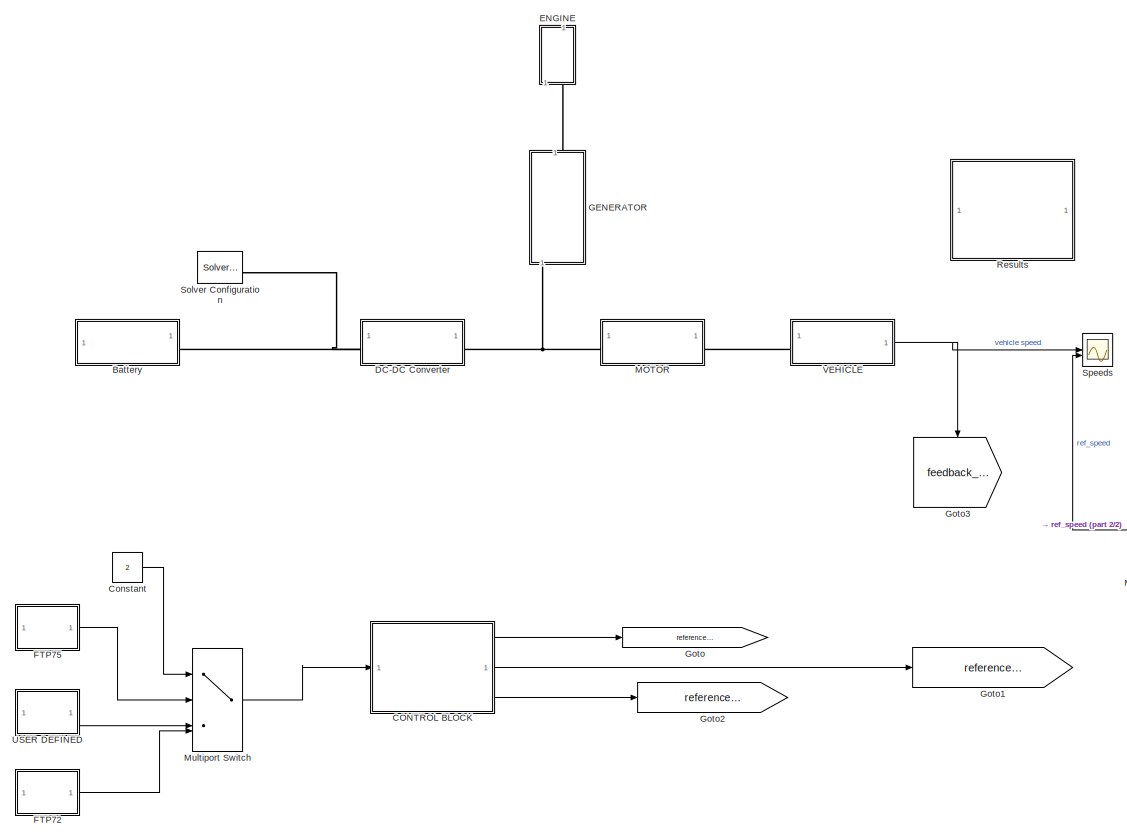
[diagram: root canvas - part 1/2, most of the canvas]
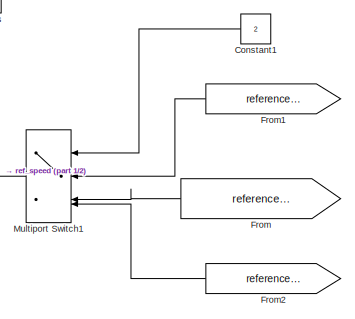
[diagram: root canvas - part 2/2, middle right region]
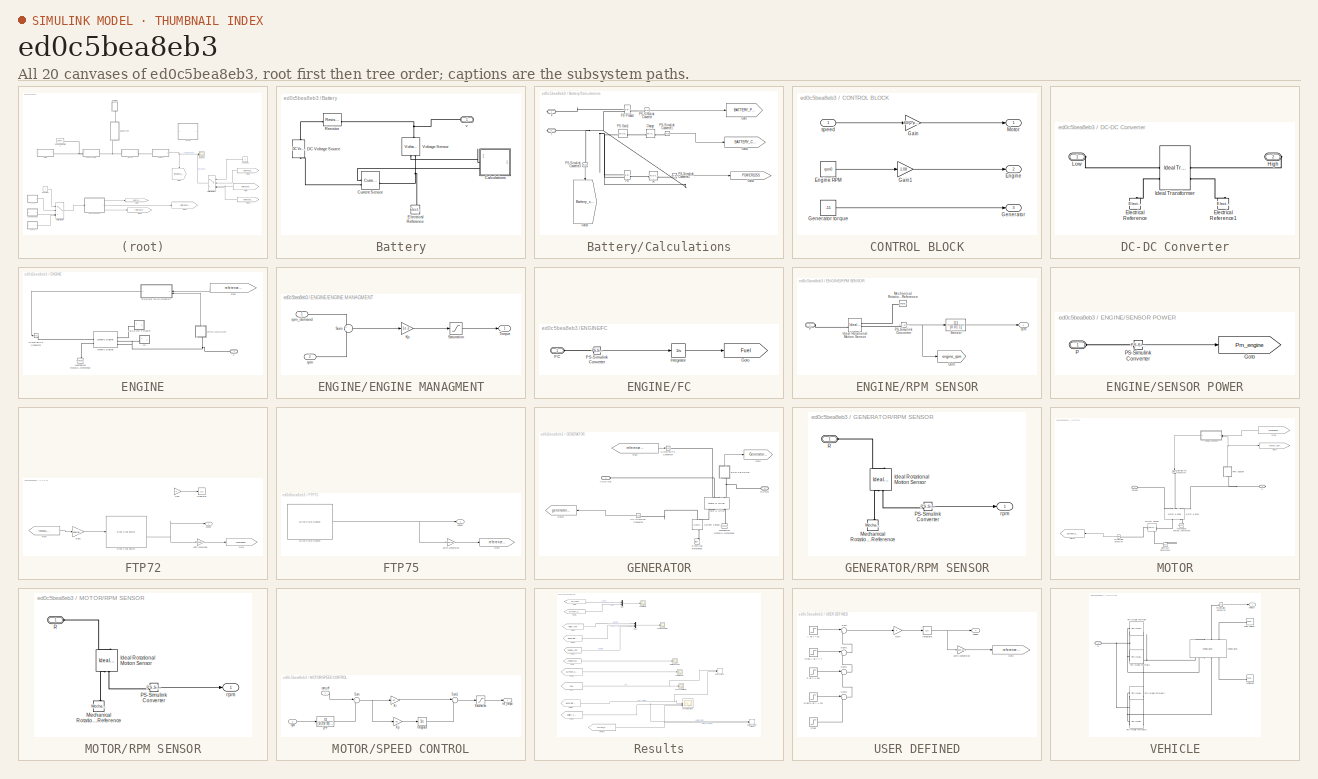
[diagram: thumbnail index - all 20 canvases of the model, root first then tree order]
MODEL slx_ed0c5bea8eb3
KIND model
CONFIG AbsTol = auto
CONFIG EnableMultiTasking = off
CONFIG FixedStep = auto
CONFIG MaxStep = auto
CONFIG MinStep = auto
CONFIG RelTol = 1e-3
CONFIG SampleTimeConstraint = Unconstrained
CONFIG SolverName = VariableStepAuto
CONFIG StartTime = 0
CONFIG StopTime = 40
WORKSPACE source: mxarray member
WORKSPACE rpm0: Simulink.Parameter (value not decoded)
WORKSPACE v0: Simulink.Parameter (value not decoded)
WORKSPACE wheel_radius: Simulink.Parameter (value not decoded)
BLOCK [SubSystem] Battery
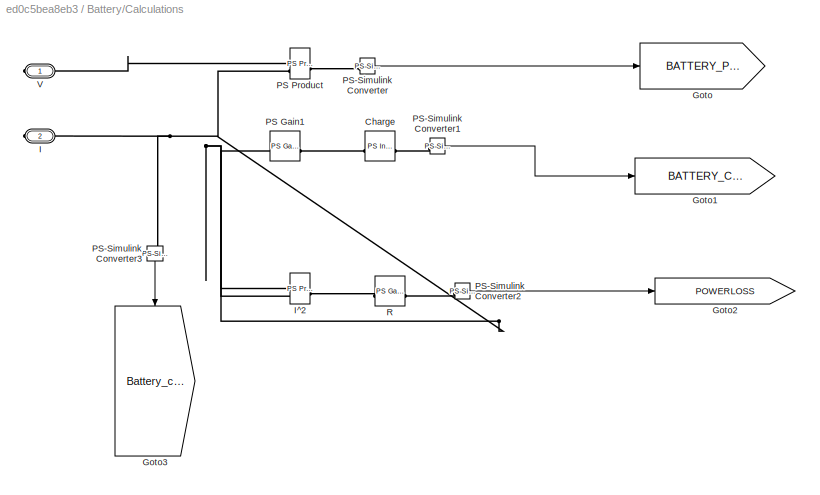
BLOCK [SubSystem] Battery/Calculations
BLOCK [Reference] Battery/Calculations/Charge  REF=fl_lib/Physical Signals/Linear Operators/PS Integrator
  SourceBlock = fl_lib/Physical Signals/Linear Operators/PS Integrator
  SourceType = PS Integrator
BLOCK [Goto] Battery/Calculations/Goto
  GotoTag = BATTERY_POWER
  TagVisibility = global
BLOCK [Goto] Battery/Calculations/Goto1
  GotoTag = BATTERY_CHARGE
  TagVisibility = global
BLOCK [Goto] Battery/Calculations/Goto2
  GotoTag = POWERLOSS
  TagVisibility = global
BLOCK [Goto] Battery/Calculations/Goto3
  GotoTag = Battery_current
  NameLocation = left
  TagVisibility = global
BLOCK [PMIOPort] Battery/Calculations/I
  Port = 2
  Side = Right
BLOCK [Reference] Battery/Calculations/I^2  REF=fl_lib/Physical Signals/Functions/PS Product
  SourceBlock = fl_lib/Physical Signals/Functions/PS Product
  SourceType = PS Product
BLOCK [Reference] Battery/Calculations/PS Gain1  REF=fl_lib/Physical Signals/Functions/PS Gain
  SourceBlock = fl_lib/Physical Signals/Functions/PS Gain
  SourceType = PS Gain
BLOCK [Reference] Battery/Calculations/PS Product  REF=fl_lib/Physical Signals/Functions/PS Product
  SourceBlock = fl_lib/Physical Signals/Functions/PS Product
  SourceType = PS Product
BLOCK [Reference] Battery/Calculations/PS-Simulink Converter  REF=nesl_utility/PS-Simulink
Converter
  SourceBlock = nesl_utility/PS-Simulink\nConverter
  SourceType = PS-Simulink\nConverter
BLOCK [Reference] Battery/Calculations/PS-Simulink Converter1  REF=nesl_utility/PS-Simulink
Converter
  SourceBlock = nesl_utility/PS-Simulink\nConverter
  SourceType = PS-Simulink\nConverter
BLOCK [Reference] Battery/Calculations/PS-Simulink Converter2  REF=nesl_utility/PS-Simulink
Converter
  SourceBlock = nesl_utility/PS-Simulink\nConverter
  SourceType = PS-Simulink\nConverter
BLOCK [Reference] Battery/Calculations/PS-Simulink Converter3  REF=nesl_utility/PS-Simulink
Converter
  NameLocation = left
  SourceBlock = nesl_utility/PS-Simulink\nConverter
  SourceType = PS-Simulink\nConverter
BLOCK [Reference] Battery/Calculations/R  REF=fl_lib/Physical Signals/Functions/PS Gain
  SourceBlock = fl_lib/Physical Signals/Functions/PS Gain
  SourceType = PS Gain
BLOCK [PMIOPort] Battery/Calculations/V
  Side = Right
BLOCK [Reference] Battery/Current Sensor  REF=fl_lib/Electrical/Electrical Sensors/Current Sensor
  SourceBlock = fl_lib/Electrical/Electrical Sensors/Current Sensor
  SourceType = Current Sensor
BLOCK [Reference] Battery/DC Voltage Source  REF=ee_lib/Additional
Components/SPICE Sources/DC Voltage Source
  NameLocation = left
  SourceBlock = ee_lib/Additional\nComponents/SPICE Sources/DC Voltage Source
  SourceType = DC Voltage Source
BLOCK [Reference] Battery/Electrical Reference  REF=fl_lib/Electrical/Electrical Elements/Electrical Reference
  NameLocation = right
  SourceBlock = fl_lib/Electrical/Electrical Elements/Electrical Reference
  SourceType = Electrical Reference
BLOCK [Reference] Battery/Resistor  REF=fl_lib/Electrical/Electrical Elements/Resistor
  SourceBlock = fl_lib/Electrical/Electrical Elements/Resistor
  SourceType = Resistor
BLOCK [Reference] Battery/Voltage Sensor  REF=fl_lib/Electrical/Electrical Sensors/Voltage Sensor
  NameLocation = right
  SourceBlock = fl_lib/Electrical/Electrical Sensors/Voltage Sensor
  SourceType = Voltage Sensor
BLOCK [PMIOPort] Battery/v
  Side = Right
BLOCK [SubSystem] CONTROL BLOCK
BLOCK [Outport] CONTROL BLOCK/Engine
  Port = 2
BLOCK [Constant] CONTROL BLOCK/Engine RPM
  Value = rpm0
BLOCK [Gain] CONTROL BLOCK/Gain
  Gain = 60/(2*pi)/wheel_radius
BLOCK [Gain] CONTROL BLOCK/Gain1
  Gain = 1.08
BLOCK [Outport] CONTROL BLOCK/Generator
  Port = 3
BLOCK [Constant] CONTROL BLOCK/Generator torque 
  Value = -11
BLOCK [Outport] CONTROL BLOCK/Motor
BLOCK [Inport] CONTROL BLOCK/speed
BLOCK [Constant] Constant
  Value = 2
BLOCK [Constant] Constant1
  Value = 2
BLOCK [SubSystem] DC-DC Converter
BLOCK [Reference] DC-DC Converter/Electrical Reference  REF=fl_lib/Electrical/Electrical Elements/Electrical Reference
  NameLocation = right
  SourceBlock = fl_lib/Electrical/Electrical Elements/Electrical Reference
  SourceType = Electrical Reference
BLOCK [Reference] DC-DC Converter/Electrical Reference1  REF=fl_lib/Electrical/Electrical Elements/Electrical Reference
  NameLocation = right
  SourceBlock = fl_lib/Electrical/Electrical Elements/Electrical Reference
  SourceType = Electrical Reference
BLOCK [PMIOPort] DC-DC Converter/High
  Port = 2
  Side = Right
BLOCK [Reference] DC-DC Converter/Ideal Transformer  REF=fl_lib/Electrical/Electrical Elements/Ideal Transformer
  SourceBlock = fl_lib/Electrical/Electrical Elements/Ideal Transformer
  SourceType = Ideal Transformer
BLOCK [PMIOPort] DC-DC Converter/Low
  Side = Left
BLOCK [SubSystem] ENGINE
  NameLocation = right
BLOCK [SubSystem] ENGINE/ENGINE MANAGMENT
BLOCK [Gain] ENGINE/ENGINE MANAGMENT/Kp
  Gain = 1e-3
  OutDataTypeStr = Inherit: Same as input
  ParamDataTypeStr = Inherit: Same as input
  SaturateOnIntegerOverflow = on
BLOCK [Saturate] ENGINE/ENGINE MANAGMENT/Saturation
  LowerLimit = 0
  UpperLimit = 1
BLOCK [Sum] ENGINE/ENGINE MANAGMENT/Sum
  Inputs = +-
BLOCK [Outport] ENGINE/ENGINE MANAGMENT/Torque
BLOCK [Inport] ENGINE/ENGINE MANAGMENT/rpm
  Port = 2
BLOCK [Inport] ENGINE/ENGINE MANAGMENT/rpm_demand
BLOCK [PMIOPort] ENGINE/F
  Side = Left
BLOCK [SubSystem] ENGINE/FC
BLOCK [PMIOPort] ENGINE/FC/FC
  Side = Left
BLOCK [Goto] ENGINE/FC/Goto
  GotoTag = Fuel
  TagVisibility = global
BLOCK [Integrator] ENGINE/FC/Integrator
BLOCK [Reference] ENGINE/FC/PS-Simulink Converter  REF=nesl_utility/PS-Simulink
Converter
  SourceBlock = nesl_utility/PS-Simulink\nConverter
  SourceType = PS-Simulink\nConverter
BLOCK [From] ENGINE/From
  GotoTag = reference_engine_rpm
  TagVisibility = global
BLOCK [Reference] ENGINE/Generic Engine  REF=sdl_lib/Engines & Motors/Generic Engine
  SourceBlock = sdl_lib/Engines & Motors/Generic Engine
  SourceType = Generic Engine
BLOCK [Reference] ENGINE/Mechanical Rotational Reference  REF=fl_lib/Mechanical/Rotational Elements/Mechanical
Rotational Reference
  NameLocation = right
  SourceBlock = fl_lib/Mechanical/Rotational Elements/Mechanical\nRotational Reference
  SourceType = Mechanical\nRotational Reference
BLOCK [SubSystem] ENGINE/RPM SENSOR
  NameLocation = right
BLOCK [PMIOPort] ENGINE/RPM SENSOR/F
  Side = Left
BLOCK [Goto] ENGINE/RPM SENSOR/Goto
  GotoTag = engine_rpm
  TagVisibility = global
BLOCK [Reference] ENGINE/RPM SENSOR/Ideal Rotational Motion Sensor  REF=fl_lib/Mechanical/Mechanical Sensors/Ideal Rotational
Motion Sensor
  SourceBlock = fl_lib/Mechanical/Mechanical Sensors/Ideal Rotational\nMotion Sensor
  SourceType = Ideal Rotational\nMotion Sensor
BLOCK [Reference] ENGINE/RPM SENSOR/Mechanical Rotational Reference  REF=fl_lib/Mechanical/Rotational Elements/Mechanical
Rotational Reference
  NameLocation = top
  SourceBlock = fl_lib/Mechanical/Rotational Elements/Mechanical\nRotational Reference
  SourceType = Mechanical\nRotational Reference
BLOCK [Reference] ENGINE/RPM SENSOR/PS-Simulink Converter  REF=nesl_utility/PS-Simulink
Converter
  SourceBlock = nesl_utility/PS-Simulink\nConverter
  SourceType = PS-Simulink\nConverter
BLOCK [TransferFcn] ENGINE/RPM SENSOR/Sensor
  Denominator = [0.01 1]
BLOCK [Outport] ENGINE/RPM SENSOR/rpm
BLOCK [SubSystem] ENGINE/SENSOR POWER
BLOCK [Goto] ENGINE/SENSOR POWER/Goto
  GotoTag = Pm_engine
  TagVisibility = global
BLOCK [PMIOPort] ENGINE/SENSOR POWER/P
  Side = Left
BLOCK [Reference] ENGINE/SENSOR POWER/PS-Simulink Converter  REF=nesl_utility/PS-Simulink
Converter
  SourceBlock = nesl_utility/PS-Simulink\nConverter
  SourceType = PS-Simulink\nConverter
BLOCK [Reference] ENGINE/Simulink-PS Converter  REF=nesl_utility/Simulink-PS
Converter
  SourceBlock = nesl_utility/Simulink-PS\nConverter
  SourceType = Simulink-PS\nConverter
BLOCK [SubSystem] FTP72
BLOCK [Reference] FTP72/Drive Cycle Source  REF=autolibshared/Drive Cycle Source
  AttributesFormatString = %<cycleVar> (%<tfinal>)
  LibrarySourceBlock = autolibscenario/Drive Cycle Source
  SourceBlock = autolibshared/Drive Cycle Source
  SourceType = Drive Cycle Source
BLOCK [From] FTP72/From
  GotoTag = feedback_speed
BLOCK [Gain] FTP72/Gain
  Commented = on
BLOCK [Gain] FTP72/Gain1
  Gain = 1000/3600
BLOCK [Goto] FTP72/Goto
  GotoTag = reference_rpm72
  TagVisibility = global
BLOCK [Integrator] FTP72/Integrator
  Commented = on
  InitialCondition = v0
BLOCK [Outport] FTP72/speed
BLOCK [Gain] FTP72/units conversion
  Gain = 3600/1000
BLOCK [SubSystem] FTP75
BLOCK [Reference] FTP75/Drive Cycle Source  REF=autolibshared/Drive Cycle Source
  AttributesFormatString = %<cycleVar> (%<tfinal>)
  LibrarySourceBlock = autolibscenario/Drive Cycle Source
  SourceBlock = autolibshared/Drive Cycle Source
  SourceType = Drive Cycle Source
BLOCK [Goto] FTP75/Goto
  GotoTag = reference_rpm75
  TagVisibility = global
BLOCK [Outport] FTP75/speed
BLOCK [Gain] FTP75/units conversion
  Gain = 3600/1000
BLOCK [From] From
  GotoTag = reference_rpm
  TagVisibility = global
BLOCK [From] From1
  GotoTag = reference_rpm75
  TagVisibility = global
BLOCK [From] From2
  GotoTag = reference_rpm72
  TagVisibility = global
BLOCK [SubSystem] GENERATOR
  NameLocation = right
BLOCK [Reference] GENERATOR/Current Sensor  REF=fl_lib/Electrical/Electrical Sensors/Current Sensor
  NameLocation = right
  SourceBlock = fl_lib/Electrical/Electrical Sensors/Current Sensor
  SourceType = Current Sensor
BLOCK [Reference] GENERATOR/Electrical Reference  REF=fl_lib/Electrical/Electrical Elements/Electrical Reference
  NameLocation = right
  SourceBlock = fl_lib/Electrical/Electrical Elements/Electrical Reference
  SourceType = Electrical Reference
BLOCK [From] GENERATOR/From
  GotoTag = reference_generator_torque
  TagVisibility = global
BLOCK [Goto] GENERATOR/Goto
  GotoTag = Generator_rpm
  TagVisibility = global
BLOCK [Goto] GENERATOR/Goto1
  GotoTag = generator_current
  TagVisibility = global
BLOCK [Reference] GENERATOR/Mechanical Rotational Reference  REF=fl_lib/Mechanical/Rotational Elements/Mechanical
Rotational Reference
  NameLocation = right
  SourceBlock = fl_lib/Mechanical/Rotational Elements/Mechanical\nRotational Reference
  SourceType = Mechanical\nRotational Reference
BLOCK [Reference] GENERATOR/Motor & Drive  REF=sdl_lib/Engines & Motors/Motor & Drive
  NameLocation = right
  SourceBlock = sdl_lib/Engines & Motors/Motor & Drive
  SourceType = Motor & Drive
BLOCK [Reference] GENERATOR/PS-Simulink Converter  REF=nesl_utility/PS-Simulink
Converter
  NameLocation = top
  SourceBlock = nesl_utility/PS-Simulink\nConverter
  SourceType = PS-Simulink\nConverter
BLOCK [PMIOPort] GENERATOR/ROTOR
  Port = 2
  Side = Right
BLOCK [SubSystem] GENERATOR/RPM SENSOR
  NameLocation = right
BLOCK [Reference] GENERATOR/RPM SENSOR/Ideal Rotational Motion Sensor  REF=fl_lib/Mechanical/Mechanical Sensors/Ideal Rotational
Motion Sensor
  NameLocation = right
  SourceBlock = fl_lib/Mechanical/Mechanical Sensors/Ideal Rotational\nMotion Sensor
  SourceType = Ideal Rotational\nMotion Sensor
BLOCK [Reference] GENERATOR/RPM SENSOR/Mechanical Rotational Reference  REF=fl_lib/Mechanical/Rotational Elements/Mechanical
Rotational Reference
  NameLocation = right
  SourceBlock = fl_lib/Mechanical/Rotational Elements/Mechanical\nRotational Reference
  SourceType = Mechanical\nRotational Reference
BLOCK [Reference] GENERATOR/RPM SENSOR/PS-Simulink Converter  REF=nesl_utility/PS-Simulink
Converter
  SourceBlock = nesl_utility/PS-Simulink\nConverter
  SourceType = PS-Simulink\nConverter
BLOCK [PMIOPort] GENERATOR/RPM SENSOR/R
  Side = Left
BLOCK [Outport] GENERATOR/RPM SENSOR/rpm
BLOCK [Reference] GENERATOR/Simulink-PS Converter  REF=nesl_utility/Simulink-PS
Converter
  SourceBlock = nesl_utility/Simulink-PS\nConverter
  SourceType = Simulink-PS\nConverter
BLOCK [PMIOPort] GENERATOR/VOLTAGE
  Side = Left
BLOCK [Goto] Goto
  GotoTag = reference_motor_rpm
  TagVisibility = global
BLOCK [Goto] Goto1
  GotoTag = reference_engine_rpm
  TagVisibility = global
BLOCK [Goto] Goto2
  GotoTag = reference_generator_torque
  TagVisibility = global
BLOCK [Goto] Goto3
  GotoTag = feedback_speed
  NameLocation = left
BLOCK [SubSystem] MOTOR
BLOCK [Reference] MOTOR/Current Sensor  REF=fl_lib/Electrical/Electrical Sensors/Current Sensor
  NameLocation = top
  SourceBlock = fl_lib/Electrical/Electrical Sensors/Current Sensor
  SourceType = Current Sensor
BLOCK [Reference] MOTOR/Electrical Reference1  REF=fl_lib/Electrical/Electrical Elements/Electrical Reference
  NameLocation = right
  SourceBlock = fl_lib/Electrical/Electrical Elements/Electrical Reference
  SourceType = Electrical Reference
BLOCK [From] MOTOR/From
  GotoTag = reference_motor_rpm
  TagVisibility = global
BLOCK [Goto] MOTOR/Goto
  GotoTag = motor_rpm
  TagVisibility = global
BLOCK [Goto] MOTOR/Goto1
  GotoTag = current_supplied
  TagVisibility = global
BLOCK [Reference] MOTOR/Mechanical Rotational Reference  REF=fl_lib/Mechanical/Rotational Elements/Mechanical
Rotational Reference
  NameLocation = right
  SourceBlock = fl_lib/Mechanical/Rotational Elements/Mechanical\nRotational Reference
  SourceType = Mechanical\nRotational Reference
BLOCK [Reference] MOTOR/Motor & Drive  REF=sdl_lib/Engines & Motors/Motor & Drive
  NameLocation = right
  SourceBlock = sdl_lib/Engines & Motors/Motor & Drive
  SourceType = Motor & Drive
BLOCK [Reference] MOTOR/PS-Simulink Converter  REF=nesl_utility/PS-Simulink
Converter
  NameLocation = top
  SourceBlock = nesl_utility/PS-Simulink\nConverter
  SourceType = PS-Simulink\nConverter
BLOCK [PMIOPort] MOTOR/R
  Port = 2
  Side = Right
BLOCK [SubSystem] MOTOR/RPM SENSOR
  NameLocation = right
BLOCK [Reference] MOTOR/RPM SENSOR/Ideal Rotational Motion Sensor  REF=fl_lib/Mechanical/Mechanical Sensors/Ideal Rotational
Motion Sensor
  NameLocation = right
  SourceBlock = fl_lib/Mechanical/Mechanical Sensors/Ideal Rotational\nMotion Sensor
  SourceType = Ideal Rotational\nMotion Sensor
BLOCK [Reference] MOTOR/RPM SENSOR/Mechanical Rotational Reference  REF=fl_lib/Mechanical/Rotational Elements/Mechanical
Rotational Reference
  NameLocation = right
  SourceBlock = fl_lib/Mechanical/Rotational Elements/Mechanical\nRotational Reference
  SourceType = Mechanical\nRotational Reference
BLOCK [Reference] MOTOR/RPM SENSOR/PS-Simulink Converter  REF=nesl_utility/PS-Simulink
Converter
  SourceBlock = nesl_utility/PS-Simulink\nConverter
  SourceType = PS-Simulink\nConverter
BLOCK [PMIOPort] MOTOR/RPM SENSOR/R
  Side = Left
BLOCK [Outport] MOTOR/RPM SENSOR/rpm
BLOCK [SubSystem] MOTOR/SPEED CONTROL
BLOCK [Integrator] MOTOR/SPEED CONTROL/Integrator
  LimitOutput = on
  LowerSaturationLimit = -40
  UpperSaturationLimit = 40
BLOCK [Gain] MOTOR/SPEED CONTROL/Ki
  Gain = 60
BLOCK [Gain] MOTOR/SPEED CONTROL/Kp
  Gain = 60
BLOCK [TransferFcn] MOTOR/SPEED CONTROL/LPF
  Denominator = [1/(2*pi*20) 1]
BLOCK [Saturate] MOTOR/SPEED CONTROL/Saturation
  LowerLimit = -400
  UpperLimit = 400
BLOCK [Sum] MOTOR/SPEED CONTROL/Sum
  Inputs = +-
BLOCK [Sum] MOTOR/SPEED CONTROL/Sum1
  Inputs = |++
BLOCK [Outport] MOTOR/SPEED CONTROL/ref_torque
BLOCK [Inport] MOTOR/SPEED CONTROL/rpm
  Port = 2
BLOCK [Inport] MOTOR/SPEED CONTROL/rpm_ref
BLOCK [Reference] MOTOR/Simulink-PS Converter  REF=nesl_utility/Simulink-PS
Converter
  NameLocation = left
  SourceBlock = nesl_utility/Simulink-PS\nConverter
  SourceType = Simulink-PS\nConverter
BLOCK [PMIOPort] MOTOR/Voltage
  Side = Left
BLOCK [MultiPortSwitch] Multiport Switch
  InputSameDT = off
  SaturateOnIntegerOverflow = off
BLOCK [MultiPortSwitch] Multiport Switch1
  InputSameDT = off
  SaturateOnIntegerOverflow = off
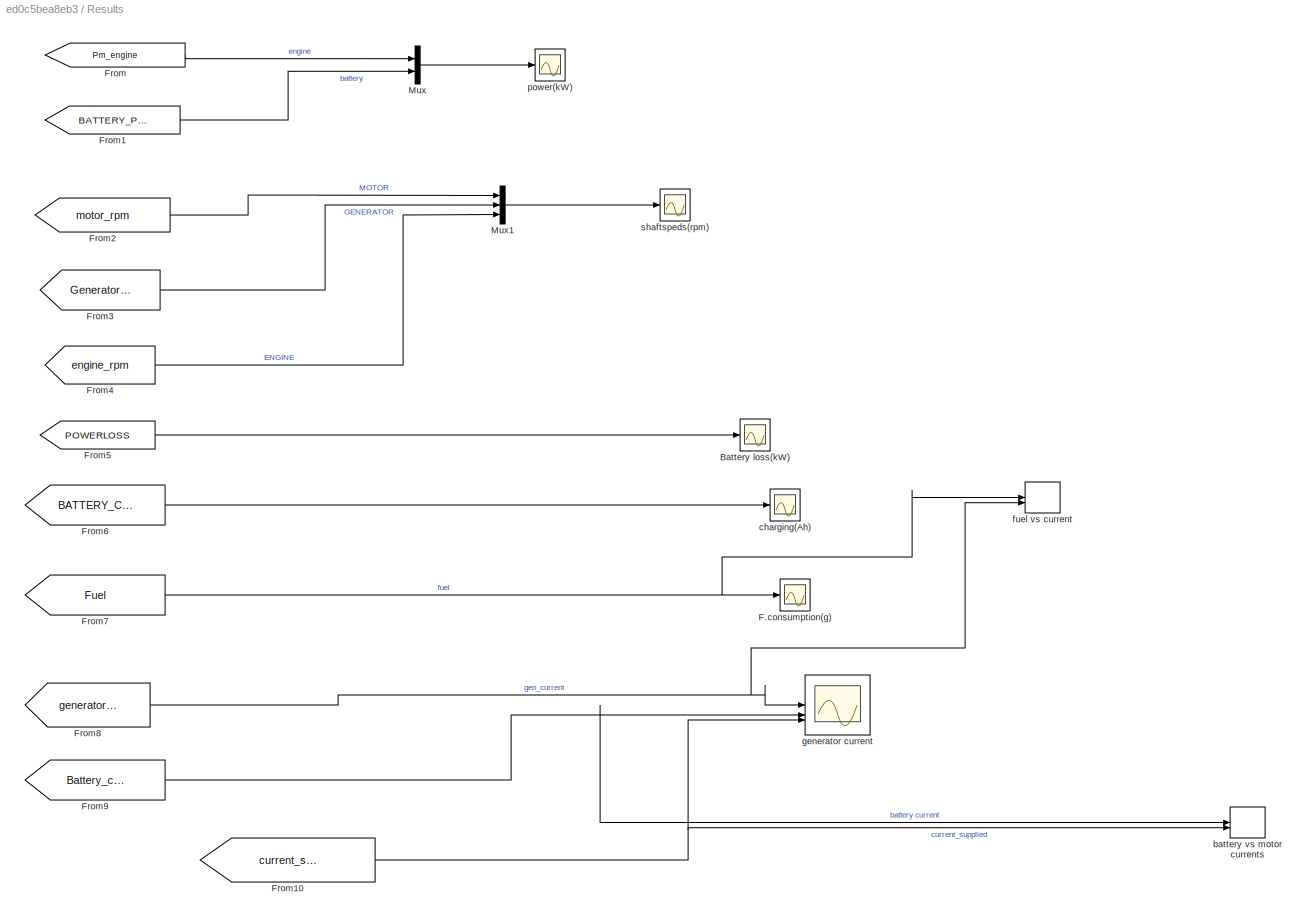
BLOCK [SubSystem] Results
BLOCK [Scope] Results/Battery loss(kW)
  Floating = off
  NumInputPorts = 1
  ScopeSpecificationString = Simulink.scopes.TimeScopeBlockCfg('CurrentConfiguration', extmgr.ConfigurationSet(extmgr.Configuration('Core','General UI',true),extmgr.Configuration('Core','Source UI',true),extmgr.Configuration('Sources','WiredSimulink',true,'DataLoggingVariableName','ScopeData3'),extmgr.Configuration('Visuals','Time Domain',true,'SerializedDisplays',{struct('MinYLimReal','-105.07977','MaxYLimReal','945.71794','...<+1484ch>
BLOCK [Scope] Results/F.consumption(g)
  Floating = off
  NameLocation = right
  NumInputPorts = 1
  ScopeSpecificationString = Simulink.scopes.TimeScopeBlockCfg('CurrentConfiguration', extmgr.ConfigurationSet(extmgr.Configuration('Core','General UI',true),extmgr.Configuration('Core','Source UI',true),extmgr.Configuration('Sources','WiredSimulink',true,'DataLoggingVariableName','ScopeData5'),extmgr.Configuration('Visuals','Time Domain',true,'SerializedDisplays',{struct('MinYLimReal','-1.07185','MaxYLimReal','9.64669','YLab...<+1452ch>
BLOCK [From] Results/From
  GotoTag = Pm_engine
  TagVisibility = global
BLOCK [From] Results/From1
  GotoTag = BATTERY_POWER
  TagVisibility = global
BLOCK [From] Results/From10
  GotoTag = current_supplied
  TagVisibility = global
BLOCK [From] Results/From2
  GotoTag = motor_rpm
  TagVisibility = global
BLOCK [From] Results/From3
  GotoTag = Generator_rpm
  TagVisibility = global
BLOCK [From] Results/From4
  GotoTag = engine_rpm
  TagVisibility = global
BLOCK [From] Results/From5
  GotoTag = POWERLOSS
  TagVisibility = global
BLOCK [From] Results/From6
  GotoTag = BATTERY_CHARGE
  TagVisibility = global
BLOCK [From] Results/From7
  GotoTag = Fuel
  TagVisibility = global
BLOCK [From] Results/From8
  GotoTag = generator_current
  TagVisibility = global
BLOCK [From] Results/From9
  GotoTag = Battery_current
  TagVisibility = global
BLOCK [Mux] Results/Mux
  DisplayOption = bar
  Inputs = 2
BLOCK [Mux] Results/Mux1
  DisplayOption = bar
  Inputs = 3
BLOCK [Record] Results/battery vs motor currents
  CompatibilityTag = XY
  FileSettingsInternal = {"entries":[{"content":{"excelSettings":{"content":{},"type":"Streamout.ExcelSettings"}},"type":"Streamout.FileSettingStorage","uuid":""}],"packageUris":["http:\/\/schema.mathworks.com\/mf0\/streamout_blocks\/R2020a"],"version":"1.0"}
  Layout = [1 1]
  SignalsInternal = {"entries":[{"content":{"signals":[{"content":{"blockPath":[],"dimensions":[1],"domain":"","lineColor":"#0072bd","lineWidth":2,"port":1,"sid":[""],"signalID":1,"signalName":"battery current"},"type":"RecordBlkView.Signal","uuid":""},{"content":{"blockPath":[],"dimensions":[1],"domain":"","lineColor":"#139fff","plots":[ 1 ],"port":2,"sid":[""],"signalID":2,"signalName":"current_supplied"},"type":"R...<+177ch>
  VisualizationBindings = {"xyplotplugin":{"info":[{"series":[{"bindingParametersList":[{"parameter":"Y-Axis","signalID":2,"signalName":"current_supplied"}],"seriesID":0}],"subplotID":1}]}}
BLOCK [Scope] Results/charging(Ah)
  Floating = off
  NumInputPorts = 1
  ScopeSpecificationString = Simulink.scopes.TimeScopeBlockCfg('CurrentConfiguration', extmgr.ConfigurationSet(extmgr.Configuration('Core','General UI',true),extmgr.Configuration('Core','Source UI',true),extmgr.Configuration('Sources','WiredSimulink',true,'DataLoggingVariableName','ScopeData4'),extmgr.Configuration('Visuals','Time Domain',true,'SerializedDisplays',{struct('MinYLimReal','149.78571','MaxYLimReal','150.02381','Y...<+1484ch>
BLOCK [Record] Results/fuel vs current 
  CompatibilityTag = XY
  FileSettingsInternal = {"entries":[{"content":{"excelSettings":{"content":{},"type":"Streamout.ExcelSettings"}},"type":"Streamout.FileSettingStorage","uuid":""}],"packageUris":["http:\/\/schema.mathworks.com\/mf0\/streamout_blocks\/R2020a"],"version":"1.0"}
  Layout = [1 1]
  SignalsInternal = {"entries":[{"content":{"signals":[{"content":{"blockPath":[],"dimensions":[1],"domain":"","lineColor":"#edb120","lineWidth":2,"port":1,"sid":[""],"signalID":1,"signalName":"fuel"},"type":"RecordBlkView.Signal","uuid":""},{"content":{"blockPath":[],"dimensions":[1],"domain":"","lineColor":"#7e2f8e","lineWidth":2,"port":2,"sid":[""],"signalID":2,"signalName":"gen_current"},"type":"RecordBlkView.Sig...<+161ch>
  VisualizationBindings = {"xyplotplugin":{"info":[{"series":[],"subplotID":1}]}}
BLOCK [Scope] Results/generator current
  Floating = off
  NumInputPorts = 3
  ScopeSpecificationString = Simulink.scopes.TimeScopeBlockCfg('CurrentConfiguration', extmgr.ConfigurationSet(extmgr.Configuration('Core','General UI',true),extmgr.Configuration('Core','Source UI',true),extmgr.Configuration('Sources','WiredSimulink',true,'DataLoggingVariableName','ScopeData1'),extmgr.Configuration('Visuals','Time Domain',true,'SerializedDisplays',{struct('MinYLimReal','-129.82694','MaxYLimReal','158.49637','...<+1689ch>
BLOCK [Scope] Results/power(kW)
  Floating = off
  NumInputPorts = 1
  ScopeSpecificationString = Simulink.scopes.TimeScopeBlockCfg('CurrentConfiguration', extmgr.ConfigurationSet(extmgr.Configuration('Core','General UI',true),extmgr.Configuration('Core','Source UI',true),extmgr.Configuration('Sources','WiredSimulink',true,'DataLoggingVariableName','ScopeData1'),extmgr.Configuration('Visuals','Time Domain',true,'SerializedDisplays',{struct('MinYLimReal','-26.43405','MaxYLimReal','30.81731','YL...<+1541ch>
BLOCK [Scope] Results/shaftspeds(rpm)
  Floating = off
  NumInputPorts = 1
  ScopeSpecificationString = Simulink.scopes.TimeScopeBlockCfg('CurrentConfiguration', extmgr.ConfigurationSet(extmgr.Configuration('Core','General UI',true),extmgr.Configuration('Core','Source UI',true),extmgr.Configuration('Sources','WiredSimulink',true,'DataLoggingVariableName','ScopeData2'),extmgr.Configuration('Visuals','Time Domain',true,'SerializedDisplays',{struct('MinYLimReal','284.78398','MaxYLimReal','2211.59248','...<+1558ch>
BLOCK [Reference] Solver Configuration  REF=nesl_utility/Solver
Configuration
  SourceBlock = nesl_utility/Solver\nConfiguration
  SourceType = Solver\nConfiguration
BLOCK [Scope] Speeds
  Floating = off
  NumInputPorts = 2
  ScopeSpecificationString = Simulink.scopes.TimeScopeBlockCfg('CurrentConfiguration', extmgr.ConfigurationSet(extmgr.Configuration('Core','General UI',true),extmgr.Configuration('Core','Source UI',true),extmgr.Configuration('Sources','WiredSimulink',true,'DataLoggingVariableName','ScopeData1'),extmgr.Configuration('Visuals','Time Domain',true,'SerializedDisplays',{struct('MinYLimReal','51.469','MaxYLimReal','74.28122','YLabe...<+1830ch>
BLOCK [SubSystem] USER DEFINED
BLOCK [Step] USER DEFINED/A at t = 2s
  SampleTime = 0
  Time = 2
BLOCK [Step] USER DEFINED/D at t = 12s
  After = -1
  SampleTime = 0
  Time = 12
BLOCK [Gain] USER DEFINED/Gain
BLOCK [Goto] USER DEFINED/Goto
  GotoTag = reference_rpm
  TagVisibility = global
BLOCK [Integrator] USER DEFINED/Integrator
  InitialCondition = v0
BLOCK [Step] USER DEFINED/Step
  SampleTime = 0
  Time = 36
BLOCK [Step] USER DEFINED/Stop A at t = 7
  After = -1
  SampleTime = 0
  Time = 7
BLOCK [Step] USER DEFINED/Stop D at t = 17s
  SampleTime = 0
  Time = 17
BLOCK [Sum] USER DEFINED/Sum
  Inputs = |++
BLOCK [Sum] USER DEFINED/Sum1
  Inputs = |++
BLOCK [Sum] USER DEFINED/Sum2
  Inputs = |++
BLOCK [Sum] USER DEFINED/Sum3
  Inputs = |++
BLOCK [Outport] USER DEFINED/speed
BLOCK [Gain] USER DEFINED/units conversion
  Gain = 3600/1000
BLOCK [SubSystem] VEHICLE
BLOCK [Reference] VEHICLE/Inclination  REF=fl_lib/Physical Signals/Sources/PS Constant
  SourceBlock = fl_lib/Physical Signals/Sources/PS Constant
  SourceType = PS Constant
BLOCK [Reference] VEHICLE/PS-Simulink Converter  REF=nesl_utility/PS-Simulink
Converter
  SourceBlock = nesl_utility/PS-Simulink\nConverter
  SourceType = PS-Simulink\nConverter
BLOCK [PMIOPort] VEHICLE/R
  Side = Left
BLOCK [Reference] VEHICLE/Tire (Magic Formula)  REF=sdl_lib/Tires & Vehicles/Tire (Magic Formula)
  SourceBlock = sdl_lib/Tires & Vehicles/Tire (Magic Formula)
  SourceType = Tire (Magic Formula)
BLOCK [Reference] VEHICLE/Tire (Magic Formula)1  REF=sdl_lib/Tires & Vehicles/Tire (Magic Formula)
  SourceBlock = sdl_lib/Tires & Vehicles/Tire (Magic Formula)
  SourceType = Tire (Magic Formula)
BLOCK [Reference] VEHICLE/Tire (Magic Formula)2  REF=sdl_lib/Tires & Vehicles/Tire (Magic Formula)
  Commented = on
  SourceBlock = sdl_lib/Tires & Vehicles/Tire (Magic Formula)
  SourceType = Tire (Magic Formula)
BLOCK [Reference] VEHICLE/Tire (Magic Formula)3  REF=sdl_lib/Tires & Vehicles/Tire (Magic Formula)
  Commented = on
  SourceBlock = sdl_lib/Tires & Vehicles/Tire (Magic Formula)
  SourceType = Tire (Magic Formula)
BLOCK [Reference] VEHICLE/Vehicle Body  REF=sdl_lib/Tires & Vehicles/Vehicle Body
  NameLocation = right
  SourceBlock = sdl_lib/Tires & Vehicles/Vehicle Body
  SourceType = Vehicle Body
BLOCK [Reference] VEHICLE/Wind velocity  REF=fl_lib/Physical Signals/Sources/PS Constant
  SourceBlock = fl_lib/Physical Signals/Sources/PS Constant
  SourceType = PS Constant
BLOCK [Outport] VEHICLE/velocity
LINE Battery/Calculations/PS-Simulink Converter1:1 -> Battery/Calculations/Goto1:1
LINE Battery/Calculations/PS-Simulink Converter2:1 -> Battery/Calculations/Goto2:1
LINE Battery/Calculations/PS-Simulink Converter3:1 -> Battery/Calculations/Goto3:1
LINE Battery/Calculations/PS-Simulink Converter:1 -> Battery/Calculations/Goto:1
LINE CONTROL BLOCK/Engine RPM:1 -> CONTROL BLOCK/Gain1:1
LINE CONTROL BLOCK/Gain1:1 -> CONTROL BLOCK/Engine:1
LINE CONTROL BLOCK/Gain:1 -> CONTROL BLOCK/Motor:1
LINE CONTROL BLOCK/Generator torque :1 -> CONTROL BLOCK/Generator:1
LINE CONTROL BLOCK/speed:1 -> CONTROL BLOCK/Gain:1
LINE CONTROL BLOCK:1 -> Goto:1
LINE CONTROL BLOCK:2 -> Goto1:1
LINE CONTROL BLOCK:3 -> Goto2:1
LINE Constant1:1 -> Multiport Switch1:1
LINE Constant:1 -> Multiport Switch:1
LINE ENGINE/ENGINE MANAGMENT/Kp:1 -> ENGINE/ENGINE MANAGMENT/Saturation:1
LINE ENGINE/ENGINE MANAGMENT/Saturation:1 -> ENGINE/ENGINE MANAGMENT/Torque:1
LINE ENGINE/ENGINE MANAGMENT/Sum:1 -> ENGINE/ENGINE MANAGMENT/Kp:1
LINE ENGINE/ENGINE MANAGMENT/rpm:1 -> ENGINE/ENGINE MANAGMENT/Sum:2
LINE ENGINE/ENGINE MANAGMENT/rpm_demand:1 -> ENGINE/ENGINE MANAGMENT/Sum:1
LINE ENGINE/ENGINE MANAGMENT:1 -> ENGINE/Simulink-PS Converter:1
LINE ENGINE/FC/Integrator:1 -> ENGINE/FC/Goto:1
LINE ENGINE/FC/PS-Simulink Converter:1 -> ENGINE/FC/Integrator:1
LINE ENGINE/From:1 -> ENGINE/ENGINE MANAGMENT:1
NET ENGINE/RPM SENSOR/PS-Simulink Converter:1 -> ENGINE/RPM SENSOR/Goto:1, ENGINE/RPM SENSOR/Sensor:1
LINE ENGINE/RPM SENSOR/Sensor:1 -> ENGINE/RPM SENSOR/rpm:1
LINE ENGINE/RPM SENSOR:1 -> ENGINE/ENGINE MANAGMENT:2
LINE ENGINE/SENSOR POWER/PS-Simulink Converter:1 -> ENGINE/SENSOR POWER/Goto:1
NET FTP72/Drive Cycle Source:2 -> FTP72/speed:1, FTP72/units conversion:1
LINE FTP72/From:1 -> FTP72/Gain1:1
LINE FTP72/Gain1:1 -> FTP72/Drive Cycle Source:1
LINE FTP72/Gain:1 -> FTP72/Integrator:1
LINE FTP72/units conversion:1 -> FTP72/Goto:1
LINE FTP72:1 -> Multiport Switch:4
NET FTP75/Drive Cycle Source:1 -> FTP75/speed:1, FTP75/units conversion:1
LINE FTP75/units conversion:1 -> FTP75/Goto:1
LINE FTP75:1 -> Multiport Switch:2
LINE From1:1 -> Multiport Switch1:2
LINE From2:1 -> Multiport Switch1:4
LINE From:1 -> Multiport Switch1:3
LINE GENERATOR/From:1 -> GENERATOR/Simulink-PS Converter:1
LINE GENERATOR/PS-Simulink Converter:1 -> GENERATOR/Goto1:1
LINE GENERATOR/RPM SENSOR/PS-Simulink Converter:1 -> GENERATOR/RPM SENSOR/rpm:1
LINE GENERATOR/RPM SENSOR:1 -> GENERATOR/Goto:1
LINE MOTOR/From:1 -> MOTOR/SPEED CONTROL:1
LINE MOTOR/PS-Simulink Converter:1 -> MOTOR/Goto1:1
LINE MOTOR/RPM SENSOR/PS-Simulink Converter:1 -> MOTOR/RPM SENSOR/rpm:1
NET MOTOR/RPM SENSOR:1 -> MOTOR/Goto:1, MOTOR/SPEED CONTROL:2
LINE MOTOR/SPEED CONTROL/Integrator:1 -> MOTOR/SPEED CONTROL/Sum1:2
LINE MOTOR/SPEED CONTROL/Ki:1 -> MOTOR/SPEED CONTROL/Sum1:1
LINE MOTOR/SPEED CONTROL/Kp:1 -> MOTOR/SPEED CONTROL/Integrator:1
LINE MOTOR/SPEED CONTROL/LPF:1 -> MOTOR/SPEED CONTROL/Sum:2
LINE MOTOR/SPEED CONTROL/Saturation:1 -> MOTOR/SPEED CONTROL/ref_torque:1
LINE MOTOR/SPEED CONTROL/Sum1:1 -> MOTOR/SPEED CONTROL/Saturation:1
NET MOTOR/SPEED CONTROL/Sum:1 -> MOTOR/SPEED CONTROL/Ki:1, MOTOR/SPEED CONTROL/Kp:1
LINE MOTOR/SPEED CONTROL/rpm:1 -> MOTOR/SPEED CONTROL/LPF:1
LINE MOTOR/SPEED CONTROL/rpm_ref:1 -> MOTOR/SPEED CONTROL/Sum:1
LINE MOTOR/SPEED CONTROL:1 -> MOTOR/Simulink-PS Converter:1
LINE Multiport Switch1:1 -> Speeds:2
LINE Multiport Switch:1 -> CONTROL BLOCK:1
NET Results/From10:1 -> Results/battery vs motor currents:2, Results/generator current:3
LINE Results/From1:1 -> Results/Mux:2
LINE Results/From2:1 -> Results/Mux1:1
LINE Results/From3:1 -> Results/Mux1:2
LINE Results/From4:1 -> Results/Mux1:3
LINE Results/From5:1 -> Results/Battery loss(kW):1
LINE Results/From6:1 -> Results/charging(Ah):1
NET Results/From7:1 -> Results/F.consumption(g):1, Results/fuel vs current :1
NET Results/From8:1 -> Results/fuel vs current :2, Results/generator current:1
NET Results/From9:1 -> Results/battery vs motor currents:1, Results/generator current:2
LINE Results/From:1 -> Results/Mux:1
LINE Results/Mux1:1 -> Results/shaftspeds(rpm):1
LINE Results/Mux:1 -> Results/power(kW):1
LINE USER DEFINED/A at t = 2s:1 -> USER DEFINED/Sum:1
LINE USER DEFINED/D at t = 12s:1 -> USER DEFINED/Sum2:1
LINE USER DEFINED/Gain:1 -> USER DEFINED/Integrator:1
NET USER DEFINED/Integrator:1 -> USER DEFINED/speed:1, USER DEFINED/units conversion:1
LINE USER DEFINED/Step:1 -> USER DEFINED/Sum3:2
LINE USER DEFINED/Stop A at t = 7:1 -> USER DEFINED/Sum1:1
LINE USER DEFINED/Stop D at t = 17s:1 -> USER DEFINED/Sum3:1
LINE USER DEFINED/Sum1:1 -> USER DEFINED/Sum:2
LINE USER DEFINED/Sum2:1 -> USER DEFINED/Sum1:2
LINE USER DEFINED/Sum3:1 -> USER DEFINED/Sum2:2
LINE USER DEFINED/Sum:1 -> USER DEFINED/Gain:1
LINE USER DEFINED/units conversion:1 -> USER DEFINED/Goto:1
LINE USER DEFINED:1 -> Multiport Switch:3
LINE VEHICLE/PS-Simulink Converter:1 -> VEHICLE/velocity:1
NET VEHICLE:1 -> Goto3:1, Speeds:1
PLINE Battery/Calculations/Charge:LConn1 -- Battery/Calculations/PS Gain1:RConn1
PLINE Battery/Calculations/Charge:RConn1 -- Battery/Calculations/PS-Simulink Converter1:LConn1
PNET net1: Battery/Calculations/I:RConn1 -- Battery/Calculations/I^2:LConn1 -- Battery/Calculations/I^2:LConn2 -- Battery/Calculations/PS Gain1:LConn1 -- Battery/Calculations/PS Product:LConn2 -- Battery/Calculations/PS-Simulink Converter3:LConn1
PLINE Battery/Calculations/I^2:RConn1 -- Battery/Calculations/R:LConn1
PLINE Battery/Calculations/PS Product:LConn1 -- Battery/Calculations/V:RConn1
PLINE Battery/Calculations/PS Product:RConn1 -- Battery/Calculations/PS-Simulink Converter:LConn1
PLINE Battery/Calculations/PS-Simulink Converter2:LConn1 -- Battery/Calculations/R:RConn1
PLINE Battery/Calculations:RConn1 -- Battery/Voltage Sensor:RConn1
PLINE Battery/Calculations:RConn2 -- Battery/Current Sensor:RConn1
PNET net2: Battery/Current Sensor:LConn1 -- Battery/Electrical Reference:LConn1 -- Battery/Voltage Sensor:RConn2
PLINE Battery/Current Sensor:RConn2 -- Battery/DC Voltage Source:RConn1
PLINE Battery/DC Voltage Source:LConn1 -- Battery/Resistor:LConn1
PNET net3: Battery/Resistor:RConn1 -- Battery/Voltage Sensor:LConn1 -- Battery/v:RConn1
PNET net4: Battery:RConn1 -- DC-DC Converter:LConn1 -- Solver Configuration:RConn1
PLINE DC-DC Converter/Electrical Reference1:LConn1 -- DC-DC Converter/Ideal Transformer:RConn2
PLINE DC-DC Converter/Electrical Reference:LConn1 -- DC-DC Converter/Ideal Transformer:LConn2
PLINE DC-DC Converter/High:RConn1 -- DC-DC Converter/Ideal Transformer:RConn1
PLINE DC-DC Converter/Ideal Transformer:LConn1 -- DC-DC Converter/Low:RConn1
PNET net5: DC-DC Converter:RConn1 -- GENERATOR:LConn1 -- MOTOR:LConn1
PNET net6: ENGINE/F:RConn1 -- ENGINE/Generic Engine:RConn3 -- ENGINE/RPM SENSOR:LConn1
PLINE ENGINE/FC/FC:RConn1 -- ENGINE/FC/PS-Simulink Converter:LConn1
PLINE ENGINE/FC:LConn1 -- ENGINE/Generic Engine:RConn2
PLINE ENGINE/Generic Engine:LConn1 -- ENGINE/Simulink-PS Converter:RConn1
PLINE ENGINE/Generic Engine:LConn2 -- ENGINE/Mechanical Rotational Reference:LConn1
PLINE ENGINE/Generic Engine:RConn1 -- ENGINE/SENSOR POWER:LConn1
PLINE ENGINE/RPM SENSOR/F:RConn1 -- ENGINE/RPM SENSOR/Ideal Rotational Motion Sensor:LConn1
PLINE ENGINE/RPM SENSOR/Ideal Rotational Motion Sensor:RConn1 -- ENGINE/RPM SENSOR/Mechanical Rotational Reference:LConn1
PLINE ENGINE/RPM SENSOR/Ideal Rotational Motion Sensor:RConn2 -- ENGINE/RPM SENSOR/PS-Simulink Converter:LConn1
PLINE ENGINE/SENSOR POWER/P:RConn1 -- ENGINE/SENSOR POWER/PS-Simulink Converter:LConn1
PLINE ENGINE:LConn1 -- GENERATOR:RConn1
PLINE GENERATOR/Current Sensor:LConn1 -- GENERATOR/Electrical Reference:LConn1
PLINE GENERATOR/Current Sensor:RConn1 -- GENERATOR/PS-Simulink Converter:LConn1
PLINE GENERATOR/Current Sensor:RConn2 -- GENERATOR/Motor & Drive:RConn1
PLINE GENERATOR/Mechanical Rotational Reference:LConn1 -- GENERATOR/Motor & Drive:RConn3
PLINE GENERATOR/Motor & Drive:LConn1 -- GENERATOR/VOLTAGE:RConn1
PLINE GENERATOR/Motor & Drive:LConn2 -- GENERATOR/Simulink-PS Converter:RConn1
PNET net7: GENERATOR/Motor & Drive:LConn3 -- GENERATOR/ROTOR:RConn1 -- GENERATOR/RPM SENSOR:LConn1
PLINE GENERATOR/RPM SENSOR/Ideal Rotational Motion Sensor:LConn1 -- GENERATOR/RPM SENSOR/R:RConn1
PLINE GENERATOR/RPM SENSOR/Ideal Rotational Motion Sensor:RConn1 -- GENERATOR/RPM SENSOR/Mechanical Rotational Reference:LConn1
PLINE GENERATOR/RPM SENSOR/Ideal Rotational Motion Sensor:RConn2 -- GENERATOR/RPM SENSOR/PS-Simulink Converter:LConn1
PLINE MOTOR/Current Sensor:LConn1 -- MOTOR/Motor & Drive:RConn1
PLINE MOTOR/Current Sensor:RConn1 -- MOTOR/PS-Simulink Converter:LConn1
PLINE MOTOR/Current Sensor:RConn2 -- MOTOR/Electrical Reference1:LConn1
PLINE MOTOR/Mechanical Rotational Reference:LConn1 -- MOTOR/Motor & Drive:RConn3
PLINE MOTOR/Motor & Drive:LConn1 -- MOTOR/Voltage:RConn1
PLINE MOTOR/Motor & Drive:LConn2 -- MOTOR/Simulink-PS Converter:RConn1
PNET net8: MOTOR/Motor & Drive:LConn3 -- MOTOR/R:RConn1 -- MOTOR/RPM SENSOR:LConn1
PLINE MOTOR/RPM SENSOR/Ideal Rotational Motion Sensor:LConn1 -- MOTOR/RPM SENSOR/R:RConn1
PLINE MOTOR/RPM SENSOR/Ideal Rotational Motion Sensor:RConn1 -- MOTOR/RPM SENSOR/Mechanical Rotational Reference:LConn1
PLINE MOTOR/RPM SENSOR/Ideal Rotational Motion Sensor:RConn2 -- MOTOR/RPM SENSOR/PS-Simulink Converter:LConn1
PLINE MOTOR:RConn1 -- VEHICLE:LConn1
PLINE VEHICLE/Inclination:RConn1 -- VEHICLE/Vehicle Body:RConn3
PLINE VEHICLE/PS-Simulink Converter:LConn1 -- VEHICLE/Vehicle Body:LConn2
PNET net9: VEHICLE/R:RConn1 -- VEHICLE/Tire (Magic Formula)1:LConn2 -- VEHICLE/Tire (Magic Formula)2:LConn2 -- VEHICLE/Tire (Magic Formula)3:LConn2 -- VEHICLE/Tire (Magic Formula):LConn2
PNET net10: VEHICLE/Tire (Magic Formula)1:LConn1 -- VEHICLE/Tire (Magic Formula):LConn1 -- VEHICLE/Vehicle Body:RConn1
PNET net11: VEHICLE/Tire (Magic Formula)1:RConn2 -- VEHICLE/Tire (Magic Formula)2:RConn2 -- VEHICLE/Tire (Magic Formula)3:RConn2 -- VEHICLE/Tire (Magic Formula):RConn2 -- VEHICLE/Vehicle Body:LConn1
PNET net12: VEHICLE/Tire (Magic Formula)2:LConn1 -- VEHICLE/Tire (Magic Formula)3:LConn1 -- VEHICLE/Vehicle Body:RConn2
PLINE VEHICLE/Vehicle Body:LConn3 -- VEHICLE/Wind velocity:RConn1
note: NET lines group one-source signal fan-out (src -> all destinations, sorted); 1:1 wires keep LINE; PNET lines group multi-terminal physical nets as a canonical sorted terminal list (undirected conserving connections); 2-terminal nets keep the pairwise PLINE form
